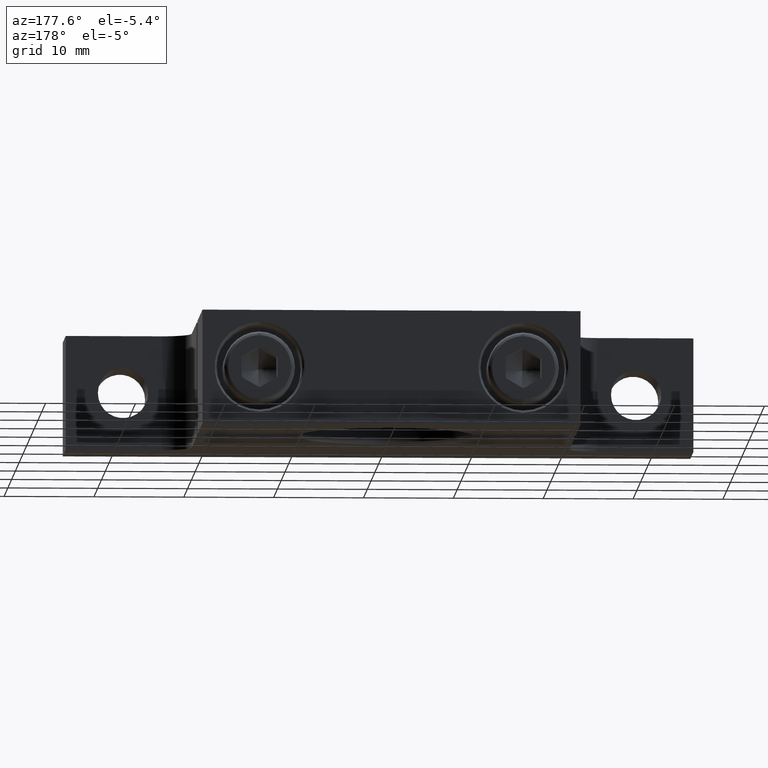
[diagram: clean part render]
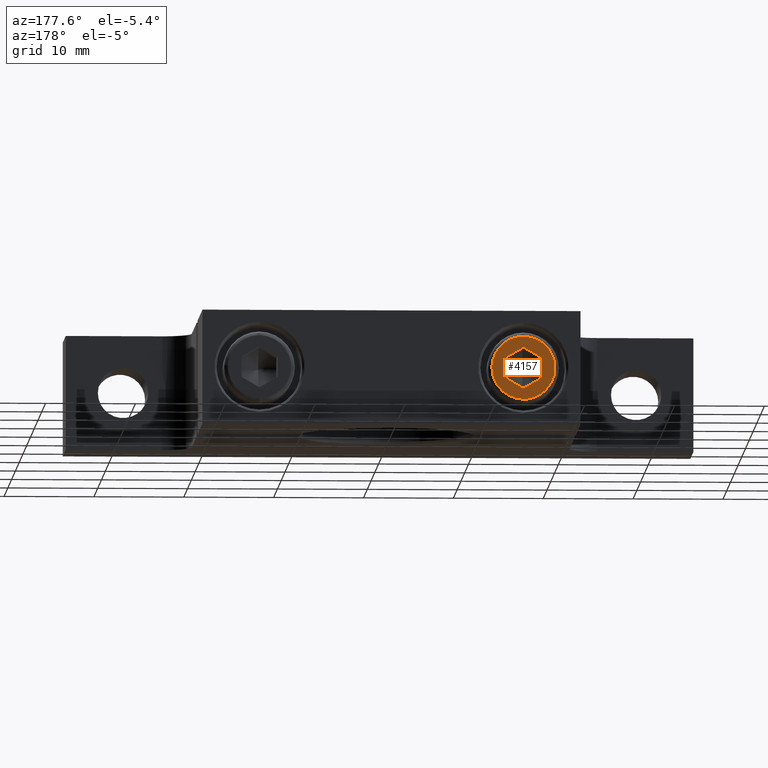
[diagram: same view with one face highlighted and labeled with its STEP entity id]
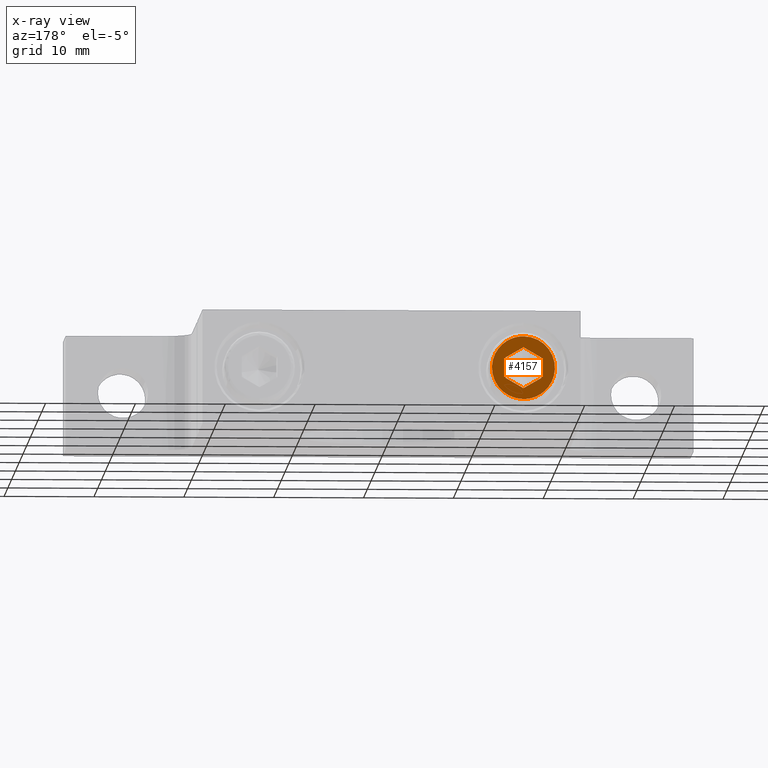
[diagram: x-ray of the same camera — body ghosted, the highlighted face saturated]
A machine part, auxiliary view. The second image highlights one B-rep face of the part: STEP entity #4157.
The next image is the same camera in x-ray: the body ghosted, the highlighted face saturated — about 0% of this face is hidden behind the body in this view.
In plain terms, the highlighted planar face has unit normal (-0, 1, 0).
Its self-contained STEP definition (entity closure, byte-faithful):
#74 = CARTESIAN_POINT ( 'NONE',  ( -0.5781250000000001100, 0.5620000000000000600, 0.09006664199358208100 ) ) ;
#199 = CARTESIAN_POINT ( 'NONE',  ( -0.5781250000000000000, 0.5620000000000000600, 0.1380000000000000900 ) ) ;
#337 = LINE ( 'NONE', #2133, #2339 ) ;
#563 = LINE ( 'NONE', #841, #2331 ) ;
#578 = CARTESIAN_POINT ( 'NONE',  ( -0.8541250000000001300, 0.5619999999999999400, 0.1380000000000001200 ) ) ;
#594 = CARTESIAN_POINT ( 'NONE',  ( -0.3021250000000000900, 0.5619999999999999400, -0.1379999999999999600 ) ) ;
#675 =( BOUNDED_CURVE ( )  B_SPLINE_CURVE ( 3, ( #199, #578, #3231, #970 ),
 .UNSPECIFIED., .F., .F. ) 
 B_SPLINE_CURVE_WITH_KNOTS ( ( 4, 4 ),
 ( 0.2500000000000000000, 0.7500000000000000000 ),
 .UNSPECIFIED. ) 
 CURVE ( )  GEOMETRIC_REPRESENTATION_ITEM ( )  RATIONAL_B_SPLINE_CURVE ( ( 1.000000000000000000, 0.3333333333333333700, 0.3333333333333333700, 1.000000000000000000 ) ) 
 REPRESENTATION_ITEM ( '' )  );
#695 = ORIENTED_EDGE ( 'NONE', *, *, #3907, .T. ) ;
#700 = EDGE_CURVE ( 'NONE', #3484, #2073, #3462, .T. ) ;
#721 = CARTESIAN_POINT ( 'NONE',  ( -0.6561250000000000700, 0.5620000000000000600, -0.04503332099679101300 ) ) ;
#761 = ORIENTED_EDGE ( 'NONE', *, *, #4475, .T. ) ;
#841 = CARTESIAN_POINT ( 'NONE',  ( -0.5781250000000001100, 0.5620000000000000600, -0.09006664199358194200 ) ) ;
#871 = DIRECTION ( 'NONE',  ( -0.8660254037844377100, 6.123235000000017900E-017, -0.5000000000000015500 ) ) ;
#883 = ORIENTED_EDGE ( 'NONE', *, *, #3006, .T. ) ;
#970 = CARTESIAN_POINT ( 'NONE',  ( -0.5781250000000001100, 0.5620000000000000600, -0.1379999999999999600 ) ) ;
#984 = CARTESIAN_POINT ( 'NONE',  ( -0.5781250000000000000, 0.5620000000000000600, 0.1380000000000000900 ) ) ;
#1035 = EDGE_CURVE ( 'NONE', #2073, #3484, #675, .T. ) ;
#1147 = FACE_BOUND ( 'NONE', #4150, .T. ) ;
#1224 = VERTEX_POINT ( 'NONE', #721 ) ;
#1314 = ORIENTED_EDGE ( 'NONE', *, *, #700, .F. ) ;
#1387 = DIRECTION ( 'NONE',  ( 1.054105000000000000E-032, -1.224646999999999900E-016, 1.000000000000000000 ) ) ;
#1553 = DIRECTION ( 'NONE',  ( 0.8660254037844378200, -6.123235000000017900E-017, 0.5000000000000015500 ) ) ;
#1672 = EDGE_CURVE ( 'NONE', #2832, #2001, #3052, .T. ) ;
#1708 = LINE ( 'NONE', #3454, #3726 ) ;
#1771 = CARTESIAN_POINT ( 'NONE',  ( -0.5781250000000001100, 0.5620000000000000600, -0.1379999999999999600 ) ) ;
#1928 = DIRECTION ( 'NONE',  ( -1.519290839321567800E-064, 1.000000000000000000, 1.224646999999999900E-016 ) ) ;
#2001 = VERTEX_POINT ( 'NONE', #3380 ) ;
#2051 = VECTOR ( 'NONE', #871, 39.37007874015748900 ) ;
#2073 = VERTEX_POINT ( 'NONE', #2277 ) ;
#2133 = CARTESIAN_POINT ( 'NONE',  ( -0.6561250000000000700, 0.5620000000000000600, 6.882515300000000900E-017 ) ) ;
#2190 = VECTOR ( 'NONE', #1387, 39.37007874015748100 ) ;
#2201 = AXIS2_PLACEMENT_3D ( 'NONE', #4207, #1928, #4602 ) ;
#2259 = VERTEX_POINT ( 'NONE', #2906 ) ;
#2277 = CARTESIAN_POINT ( 'NONE',  ( -0.5781250000000000000, 0.5620000000000000600, 0.1380000000000000900 ) ) ;
#2298 = DIRECTION ( 'NONE',  ( -0.8660254037844377100, -6.123235000000017900E-017, 0.5000000000000015500 ) ) ;
#2315 = CARTESIAN_POINT ( 'NONE',  ( -0.5781250000000001100, 0.5620000000000000600, -0.09006664199358185900 ) ) ;
#2331 = VECTOR ( 'NONE', #1553, 39.37007874015747400 ) ;
#2339 = VECTOR ( 'NONE', #4418, 39.37007874015748100 ) ;
#2402 = VERTEX_POINT ( 'NONE', #2645 ) ;
#2413 = EDGE_CURVE ( 'NONE', #2259, #2832, #1708, .T. ) ;
#2529 = CARTESIAN_POINT ( 'NONE',  ( -0.6561250000000000700, 0.5620000000000000600, -0.04503332099679093600 ) ) ;
#2552 = EDGE_CURVE ( 'NONE', #2608, #2402, #563, .T. ) ;
#2608 = VERTEX_POINT ( 'NONE', #2315 ) ;
#2624 = PLANE ( 'NONE',  #2201 ) ;
#2645 = CARTESIAN_POINT ( 'NONE',  ( -0.5001250000000000400, 0.5620000000000000600, -0.04503332099679093600 ) ) ;
#2669 = FACE_OUTER_BOUND ( 'NONE', #3678, .T. ) ;
#2746 = CARTESIAN_POINT ( 'NONE',  ( -0.5781250000000000000, 0.5620000000000000600, 0.09006664199358198300 ) ) ;
#2797 = ORIENTED_EDGE ( 'NONE', *, *, #2552, .T. ) ;
#2832 = VERTEX_POINT ( 'NONE', #2746 ) ;
#2906 = CARTESIAN_POINT ( 'NONE',  ( -0.5001250000000000400, 0.5620000000000000600, 0.04503332099679108900 ) ) ;
#2970 = ORIENTED_EDGE ( 'NONE', *, *, #1035, .F. ) ;
#3006 = EDGE_CURVE ( 'NONE', #2001, #1224, #337, .T. ) ;
#3052 = LINE ( 'NONE', #74, #2051 ) ;
#3199 = LINE ( 'NONE', #3660, #2190 ) ;
#3225 = CARTESIAN_POINT ( 'NONE',  ( -0.3021250000000000900, 0.5619999999999999400, 0.1380000000000000700 ) ) ;
#3231 = CARTESIAN_POINT ( 'NONE',  ( -0.8541250000000001300, 0.5619999999999999400, -0.1379999999999999600 ) ) ;
#3241 = CARTESIAN_POINT ( 'NONE',  ( -0.5781250000000001100, 0.5620000000000000600, -0.1379999999999999600 ) ) ;
#3380 = CARTESIAN_POINT ( 'NONE',  ( -0.6561250000000000700, 0.5620000000000000600, 0.04503332099679108200 ) ) ;
#3385 = VECTOR ( 'NONE', #3704, 39.37007874015748900 ) ;
#3454 = CARTESIAN_POINT ( 'NONE',  ( -0.5001250000000000400, 0.5620000000000000600, 0.04503332099679106800 ) ) ;
#3462 =( BOUNDED_CURVE ( )  B_SPLINE_CURVE ( 3, ( #3241, #594, #3225, #984 ),
 .UNSPECIFIED., .F., .F. ) 
 B_SPLINE_CURVE_WITH_KNOTS ( ( 4, 4 ),
 ( 0.7500000000000000000, 1.250000000000000000 ),
 .UNSPECIFIED. ) 
 CURVE ( )  GEOMETRIC_REPRESENTATION_ITEM ( )  RATIONAL_B_SPLINE_CURVE ( ( 1.000000000000000000, 0.3333333333333333700, 0.3333333333333333700, 1.000000000000000000 ) ) 
 REPRESENTATION_ITEM ( '' )  );
#3484 = VERTEX_POINT ( 'NONE', #1771 ) ;
#3660 = CARTESIAN_POINT ( 'NONE',  ( -0.5001250000000000400, 0.5620000000000000600, 6.882515300000000900E-017 ) ) ;
#3678 = EDGE_LOOP ( 'NONE', ( #1314, #2970 ) ) ;
#3704 = DIRECTION ( 'NONE',  ( 0.8660254037844377100, 6.123235000000017900E-017, -0.5000000000000015500 ) ) ;
#3726 = VECTOR ( 'NONE', #2298, 39.37007874015748900 ) ;
#3907 = EDGE_CURVE ( 'NONE', #2402, #2259, #3199, .T. ) ;
#3988 = ORIENTED_EDGE ( 'NONE', *, *, #1672, .T. ) ;
#4150 = EDGE_LOOP ( 'NONE', ( #761, #2797, #695, #4502, #3988, #883 ) ) ;
#4157 = ADVANCED_FACE ( 'NONE', ( #1147, #2669 ), #2624, .T. ) ;
#4207 = CARTESIAN_POINT ( 'NONE',  ( -0.4550916790032090200, 0.5620000000000000600, 6.882515300000000900E-017 ) ) ;
#4418 = DIRECTION ( 'NONE',  ( -1.054105000000000000E-032, 1.224646999999999900E-016, -1.000000000000000000 ) ) ;
#4475 = EDGE_CURVE ( 'NONE', #1224, #2608, #4543, .T. ) ;
#4502 = ORIENTED_EDGE ( 'NONE', *, *, #2413, .T. ) ;
#4543 = LINE ( 'NONE', #2529, #3385 ) ;
#4602 = DIRECTION ( 'NONE',  ( 1.054105000000000000E-032, -1.224646999999999900E-016, 1.000000000000000000 ) ) ;